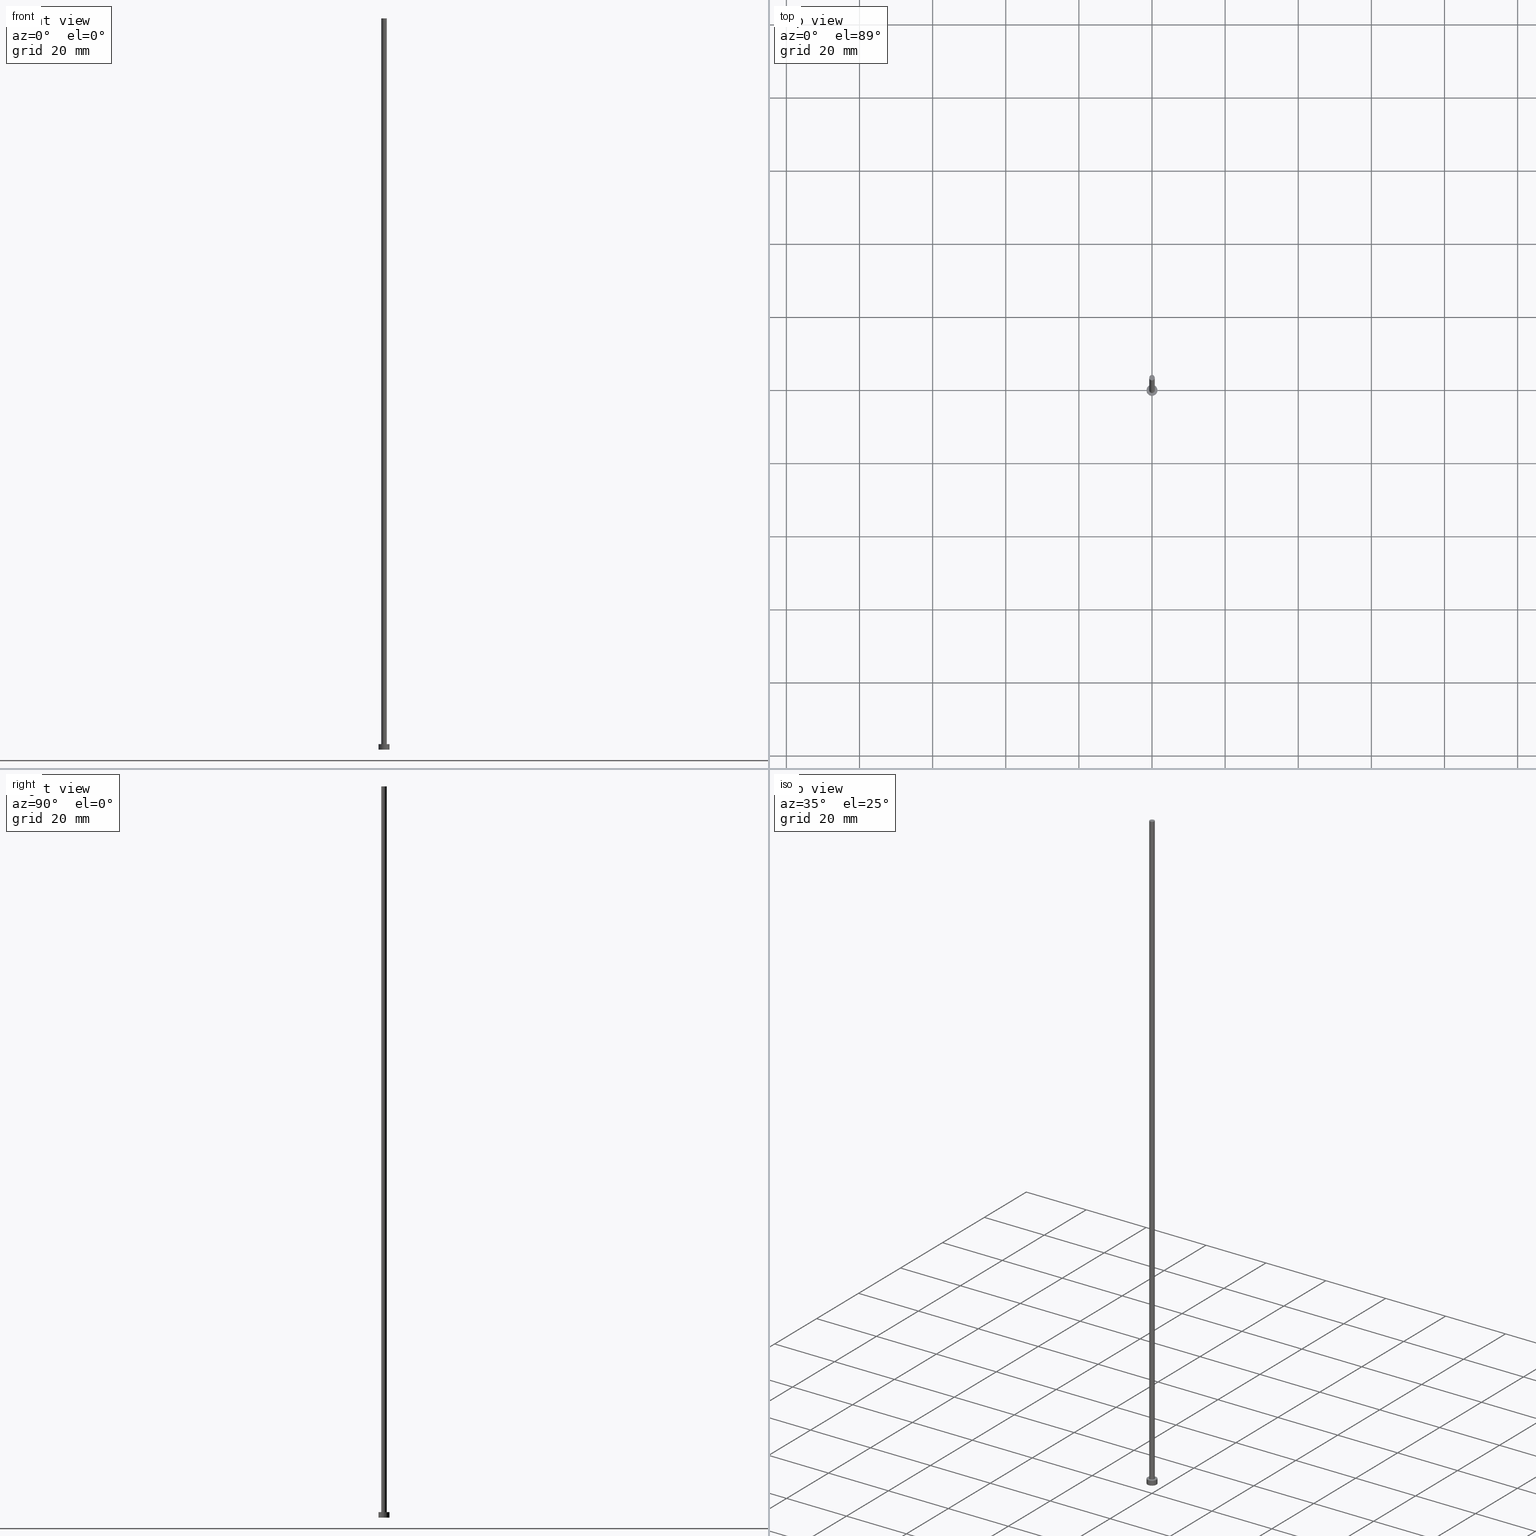
[diagram: canonical four-view strip — front | top / right | iso, engineering-drawing reading convention]
A machine part, canonical four-view strip (front | top / right | iso — engineering-drawing reading convention). The complete STEP part file that produces these views, byte-faithful:
ISO-10303-21;
HEADER;
FILE_DESCRIPTION (( 'STEP AP203' ),
    '1' );
FILE_NAME ('384c.STEP',
    '2026-02-06T12:33:17',
    ( '' ),
    ( '' ),
    'SwSTEP 2.0',
    'SolidWorks 2019',
    '' );
FILE_SCHEMA (( 'CONFIG_CONTROL_DESIGN' ));
ENDSEC;

DATA;
#1 = ORIENTED_EDGE ( 'NONE', *, *, #174, .T. ) ;
#2 = CALENDAR_DATE ( 2026, 6, 2 ) ;
#3 = APPLICATION_PROTOCOL_DEFINITION ( 'international standard', 'config_control_design', 1994, #215 ) ;
#4 = CC_DESIGN_APPROVAL ( #55, ( #110 ) ) ;
#5 = DATE_AND_TIME ( #76, #204 ) ;
#6 = ORIENTED_EDGE ( 'NONE', *, *, #95, .T. ) ;
#7 = DIRECTION ( 'NONE',  ( -0.000000000000000000, -0.000000000000000000, -1.000000000000000000 ) ) ;
#8 = CC_DESIGN_PERSON_AND_ORGANIZATION_ASSIGNMENT ( #78, #134, ( #112 ) ) ;
#9 = DATE_TIME_ROLE ( 'classification_date' ) ;
#10 = EDGE_LOOP ( 'NONE', ( #81, #24, #140, #104 ) ) ;
#11 = CARTESIAN_POINT ( 'NONE',  ( 0.000000000000000000, 0.000000000000000000, 1.500000000000000000 ) ) ;
#12 = COORDINATED_UNIVERSAL_TIME_OFFSET ( 1, 0, .AHEAD. ) ;
#13 = EDGE_LOOP ( 'NONE', ( #139, #131, #224, #37 ) ) ;
#14 = PRODUCT_RELATED_PRODUCT_CATEGORY ( 'detail', '', ( #50 ) ) ;
#15 = EDGE_CURVE ( 'NONE', #69, #168, #207, .T. ) ;
#16 =( LENGTH_UNIT ( ) NAMED_UNIT ( * ) SI_UNIT ( .MILLI., .METRE. ) );
#17 = DIRECTION ( 'NONE',  ( 0.000000000000000000, 0.000000000000000000, 1.000000000000000000 ) ) ;
#18 = DIRECTION ( 'NONE',  ( 1.000000000000000000, 0.000000000000000000, 0.000000000000000000 ) ) ;
#19 = DIRECTION ( 'NONE',  ( 1.000000000000000000, 0.000000000000000000, 0.000000000000000000 ) ) ;
#20 = DIRECTION ( 'NONE',  ( 0.000000000000000000, 0.000000000000000000, 1.000000000000000000 ) ) ;
#21 = CIRCLE ( 'NONE', #45, 0.7500000000000001110 ) ;
#22 = DIRECTION ( 'NONE',  ( 0.000000000000000000, 0.000000000000000000, 1.000000000000000000 ) ) ;
#23 = DIRECTION ( 'NONE',  ( 1.000000000000000000, 0.000000000000000000, 0.000000000000000000 ) ) ;
#24 = ORIENTED_EDGE ( 'NONE', *, *, #179, .F. ) ;
#25 = APPROVAL_DATE_TIME ( #98, #55 ) ;
#26 = PERSON_AND_ORGANIZATION_ROLE ( 'design_supplier' ) ;
#27 = CARTESIAN_POINT ( 'NONE',  ( 0.000000000000000000, 0.000000000000000000, 1.500000000000000000 ) ) ;
#28 = COORDINATED_UNIVERSAL_TIME_OFFSET ( 1, 0, .AHEAD. ) ;
#29 = DIRECTION ( 'NONE',  ( 1.000000000000000000, 0.000000000000000000, 0.000000000000000000 ) ) ;
#30 = PLANE ( 'NONE',  #221 ) ;
#31 = ORIENTED_EDGE ( 'NONE', *, *, #143, .F. ) ;
#32 = DIRECTION ( 'NONE',  ( -0.000000000000000000, -0.000000000000000000, -1.000000000000000000 ) ) ;
#33 = EDGE_CURVE ( 'NONE', #234, #242, #64, .T. ) ;
#34 = ORIENTED_EDGE ( 'NONE', *, *, #179, .T. ) ;
#35 = APPROVAL_PERSON_ORGANIZATION ( #161, #55, #198 ) ;
#36 = FACE_OUTER_BOUND ( 'NONE', #119, .T. ) ;
#37 = ORIENTED_EDGE ( 'NONE', *, *, #128, .F. ) ;
#38 = CIRCLE ( 'NONE', #113, 0.7500000000000001110 ) ;
#39 = COORDINATED_UNIVERSAL_TIME_OFFSET ( 1, 0, .AHEAD. ) ;
#40 = APPROVAL_ROLE ( '' ) ;
#41 = PRODUCT_DEFINITION_FORMATION_WITH_SPECIFIED_SOURCE ( 'LIBOVOLN�', '', #50, .NOT_KNOWN. ) ;
#42 = ADVANCED_BREP_SHAPE_REPRESENTATION ( '384c', ( #158, #172 ), #150 ) ;
#43 = APPROVAL_STATUS ( 'not_yet_approved' ) ;
#44 = CARTESIAN_POINT ( 'NONE',  ( 0.7500000000000001110, 9.184850993605150903E-17, 200.0000000000000000 ) ) ;
#45 = AXIS2_PLACEMENT_3D ( 'NONE', #229, #205, #18 ) ;
#46 = DIRECTION ( 'NONE',  ( 0.000000000000000000, 0.000000000000000000, 1.000000000000000000 ) ) ;
#47 = ADVANCED_FACE ( 'NONE', ( #232 ), #68, .T. ) ;
#48 = ADVANCED_FACE ( 'NONE', ( #66 ), #177, .T. ) ;
#49 = CARTESIAN_POINT ( 'NONE',  ( 0.000000000000000000, 0.000000000000000000, 1.500000000000000000 ) ) ;
#50 = PRODUCT ( '384c', '384c', '', ( #137 ) ) ;
#51 = CC_DESIGN_PERSON_AND_ORGANIZATION_ASSIGNMENT ( #59, #115, ( #50 ) ) ;
#52 = ADVANCED_FACE ( 'NONE', ( #253 ), #182, .T. ) ;
#53 = CALENDAR_DATE ( 2026, 6, 2 ) ;
#54 = APPROVAL_STATUS ( 'not_yet_approved' ) ;
#55 = APPROVAL ( #138, 'NEUR�EN�' ) ;
#56 = EDGE_LOOP ( 'NONE', ( #132, #220, #211, #231 ) ) ;
#57 = CARTESIAN_POINT ( 'NONE',  ( 1.500000000000000222, 1.836970198721030181E-16, 1.500000000000000000 ) ) ;
#58 = ORIENTED_EDGE ( 'NONE', *, *, #33, .T. ) ;
#59 = PERSON_AND_ORGANIZATION ( #164, #180 ) ;
#60 = LINE ( 'NONE', #44, #126 ) ;
#61 = CARTESIAN_POINT ( 'NONE',  ( 0.7500000000000001110, 9.184850993605150903E-17, 200.0000000000000000 ) ) ;
#62 = CC_DESIGN_SECURITY_CLASSIFICATION ( #110, ( #41 ) ) ;
#63 = EDGE_CURVE ( 'NONE', #122, #74, #67, .T. ) ;
#64 = CIRCLE ( 'NONE', #212, 1.500000000000000222 ) ;
#65 = AXIS2_PLACEMENT_3D ( 'NONE', #124, #147, #206 ) ;
#66 = FACE_OUTER_BOUND ( 'NONE', #56, .T. ) ;
#67 = CIRCLE ( 'NONE', #255, 0.7500000000000001110 ) ;
#68 = CYLINDRICAL_SURFACE ( 'NONE', #218, 0.7500000000000001110 ) ;
#69 = VERTEX_POINT ( 'NONE', #57 ) ;
#70 = AXIS2_PLACEMENT_3D ( 'NONE', #145, #32, #89 ) ;
#71 = DESIGN_CONTEXT ( 'detailed design', #215, 'design' ) ;
#72 = APPROVAL ( #54, 'NEUR�EN�' ) ;
#73 = CARTESIAN_POINT ( 'NONE',  ( 0.000000000000000000, 0.000000000000000000, 1.500000000000000000 ) ) ;
#74 = VERTEX_POINT ( 'NONE', #223 ) ;
#75 = CLOSED_SHELL ( 'NONE', ( #47, #52, #48, #123, #152, #216, #97 ) ) ;
#76 = CALENDAR_DATE ( 2026, 6, 2 ) ;
#77 = APPROVAL_PERSON_ORGANIZATION ( #135, #72, #162 ) ;
#78 = PERSON_AND_ORGANIZATION ( #164, #180 ) ;
#79 = CARTESIAN_POINT ( 'NONE',  ( 0.000000000000000000, 0.000000000000000000, 200.0000000000000000 ) ) ;
#80 = PERSON_AND_ORGANIZATION ( #164, #180 ) ;
#81 = ORIENTED_EDGE ( 'NONE', *, *, #176, .F. ) ;
#82 = DIRECTION ( 'NONE',  ( 0.000000000000000000, 0.000000000000000000, 1.000000000000000000 ) ) ;
#83 = ORIENTED_EDGE ( 'NONE', *, *, #33, .F. ) ;
#84 = PLANE ( 'NONE',  #236 ) ;
#85 = APPLICATION_PROTOCOL_DEFINITION ( 'international standard', 'config_control_design', 1994, #203 ) ;
#86 = DIRECTION ( 'NONE',  ( 0.000000000000000000, 0.000000000000000000, 1.000000000000000000 ) ) ;
#87 = EDGE_CURVE ( 'NONE', #168, #242, #117, .T. ) ;
#88 =( NAMED_UNIT ( * ) PLANE_ANGLE_UNIT ( ) SI_UNIT ( $, .RADIAN. ) );
#89 = DIRECTION ( 'NONE',  ( -1.000000000000000000, 0.000000000000000000, 0.000000000000000000 ) ) ;
#90 = DIRECTION ( 'NONE',  ( -0.000000000000000000, -0.000000000000000000, -1.000000000000000000 ) ) ;
#91 = LOCAL_TIME ( 13, 33, 17.00000000000000000, #39 ) ;
#92 = DIRECTION ( 'NONE',  ( -0.000000000000000000, -0.000000000000000000, -1.000000000000000000 ) ) ;
#93 = DIRECTION ( 'NONE',  ( 1.000000000000000000, 0.000000000000000000, 0.000000000000000000 ) ) ;
#94 = CARTESIAN_POINT ( 'NONE',  ( 0.000000000000000000, 0.000000000000000000, 1.500000000000000000 ) ) ;
#95 = EDGE_CURVE ( 'NONE', #187, #156, #144, .T. ) ;
#96 = CC_DESIGN_DATE_AND_TIME_ASSIGNMENT ( #238, #219, ( #112 ) ) ;
#97 = ADVANCED_FACE ( 'NONE', ( #239 ), #84, .T. ) ;
#98 = DATE_AND_TIME ( #159, #129 ) ;
#99 = CIRCLE ( 'NONE', #146, 1.500000000000000222 ) ;
#100 = DIRECTION ( 'NONE',  ( 0.000000000000000000, 0.000000000000000000, 1.000000000000000000 ) ) ;
#101 = CARTESIAN_POINT ( 'NONE',  ( -1.500000000000000222, 0.000000000000000000, 1.500000000000000000 ) ) ;
#102 = COORDINATED_UNIVERSAL_TIME_OFFSET ( 1, 0, .AHEAD. ) ;
#103 = SHAPE_DEFINITION_REPRESENTATION ( #157, #42 ) ;
#104 = ORIENTED_EDGE ( 'NONE', *, *, #143, .T. ) ;
#105 = CARTESIAN_POINT ( 'NONE',  ( -0.7500000000000001110, 0.000000000000000000, 200.0000000000000000 ) ) ;
#106 = ORIENTED_EDGE ( 'NONE', *, *, #15, .T. ) ;
#107 = AXIS2_PLACEMENT_3D ( 'NONE', #27, #185, #241 ) ;
#108 = FACE_OUTER_BOUND ( 'NONE', #10, .T. ) ;
#109 = CARTESIAN_POINT ( 'NONE',  ( 0.7500000000000001110, 9.184850993605150903E-17, 1.500000000000000000 ) ) ;
#110 = SECURITY_CLASSIFICATION ( '', '', #141 ) ;
#111 = LOCAL_TIME ( 13, 33, 17.00000000000000000, #102 ) ;
#112 = PRODUCT_DEFINITION ( 'NEZN�M�', '', #41, #71 ) ;
#113 = AXIS2_PLACEMENT_3D ( 'NONE', #250, #149, #19 ) ;
#114 = EDGE_LOOP ( 'NONE', ( #34, #6 ) ) ;
#115 = PERSON_AND_ORGANIZATION_ROLE ( 'design_owner' ) ;
#116 = DATE_AND_TIME ( #2, #91 ) ;
#117 = LINE ( 'NONE', #101, #136 ) ;
#118 = PERSON_AND_ORGANIZATION ( #164, #180 ) ;
#119 = EDGE_LOOP ( 'NONE', ( #184, #83 ) ) ;
#120 = APPROVAL ( #43, 'NEUR�EN�' ) ;
#121 =( NAMED_UNIT ( * ) SI_UNIT ( $, .STERADIAN. ) SOLID_ANGLE_UNIT ( ) );
#122 = VERTEX_POINT ( 'NONE', #109 ) ;
#123 = ADVANCED_FACE ( 'NONE', ( #175, #252 ), #30, .T. ) ;
#124 = CARTESIAN_POINT ( 'NONE',  ( 0.000000000000000000, 0.000000000000000000, 0.000000000000000000 ) ) ;
#125 = DIRECTION ( 'NONE',  ( 1.000000000000000000, 0.000000000000000000, 0.000000000000000000 ) ) ;
#126 = VECTOR ( 'NONE', #226, 1000.000000000000000 ) ;
#127 = CARTESIAN_POINT ( 'NONE',  ( 0.000000000000000000, 0.000000000000000000, 0.000000000000000000 ) ) ;
#128 = EDGE_CURVE ( 'NONE', #156, #74, #194, .T. ) ;
#129 = LOCAL_TIME ( 13, 33, 17.00000000000000000, #181 ) ;
#130 = PLANE ( 'NONE',  #133 ) ;
#131 = ORIENTED_EDGE ( 'NONE', *, *, #176, .T. ) ;
#132 = ORIENTED_EDGE ( 'NONE', *, *, #174, .F. ) ;
#133 = AXIS2_PLACEMENT_3D ( 'NONE', #208, #86, #188 ) ;
#134 = PERSON_AND_ORGANIZATION_ROLE ( 'creator' ) ;
#135 = PERSON_AND_ORGANIZATION ( #164, #180 ) ;
#136 = VECTOR ( 'NONE', #7, 1000.000000000000000 ) ;
#137 = MECHANICAL_CONTEXT ( 'NONE', #203, 'mechanical' ) ;
#138 = APPROVAL_STATUS ( 'not_yet_approved' ) ;
#139 = ORIENTED_EDGE ( 'NONE', *, *, #95, .F. ) ;
#140 = ORIENTED_EDGE ( 'NONE', *, *, #128, .T. ) ;
#141 = SECURITY_CLASSIFICATION_LEVEL ( 'unclassified' ) ;
#142 = CARTESIAN_POINT ( 'NONE',  ( 0.000000000000000000, 0.000000000000000000, 200.0000000000000000 ) ) ;
#143 = EDGE_CURVE ( 'NONE', #74, #122, #38, .T. ) ;
#144 = CIRCLE ( 'NONE', #225, 0.7500000000000001110 ) ;
#145 = CARTESIAN_POINT ( 'NONE',  ( 0.000000000000000000, 0.000000000000000000, 200.0000000000000000 ) ) ;
#146 = AXIS2_PLACEMENT_3D ( 'NONE', #148, #189, #170 ) ;
#147 = DIRECTION ( 'NONE',  ( 0.000000000000000000, 0.000000000000000000, 1.000000000000000000 ) ) ;
#148 = CARTESIAN_POINT ( 'NONE',  ( 0.000000000000000000, 0.000000000000000000, 1.500000000000000000 ) ) ;
#149 = DIRECTION ( 'NONE',  ( 0.000000000000000000, 0.000000000000000000, 1.000000000000000000 ) ) ;
#150 =( GEOMETRIC_REPRESENTATION_CONTEXT ( 3 ) GLOBAL_UNCERTAINTY_ASSIGNED_CONTEXT ( ( #154 ) ) GLOBAL_UNIT_ASSIGNED_CONTEXT ( ( #16, #88, #121 ) ) REPRESENTATION_CONTEXT ( 'NONE', 'WORKASPACE' ) );
#151 = CARTESIAN_POINT ( 'NONE',  ( 0.000000000000000000, 0.000000000000000000, 200.0000000000000000 ) ) ;
#152 = ADVANCED_FACE ( 'NONE', ( #36 ), #130, .F. ) ;
#153 = DIRECTION ( 'NONE',  ( -1.000000000000000000, 0.000000000000000000, 0.000000000000000000 ) ) ;
#154 = UNCERTAINTY_MEASURE_WITH_UNIT (LENGTH_MEASURE( 1.000000000000000082E-05 ), #16, 'distance_accuracy_value', 'NONE');
#155 = CC_DESIGN_APPROVAL ( #72, ( #112 ) ) ;
#156 = VERTEX_POINT ( 'NONE', #105 ) ;
#157 = PRODUCT_DEFINITION_SHAPE ( 'NONE', 'NONE',  #112 ) ;
#158 = MANIFOLD_SOLID_BREP ( 'P�idat vysunut�m3', #75 ) ;
#159 = CALENDAR_DATE ( 2026, 6, 2 ) ;
#160 = CIRCLE ( 'NONE', #65, 1.500000000000000222 ) ;
#161 = PERSON_AND_ORGANIZATION ( #164, #180 ) ;
#162 = APPROVAL_ROLE ( '' ) ;
#163 = EDGE_LOOP ( 'NONE', ( #196, #106 ) ) ;
#164 = PERSON ( 'NEUR�EN�', 'NEUR�EN�', 'NEUR�EN�', ('NEUR�EN�'), ('NEUR�EN�'), ('NEUR�EN�') ) ;
#165 = ORIENTED_EDGE ( 'NONE', *, *, #87, .F. ) ;
#166 = CC_DESIGN_PERSON_AND_ORGANIZATION_ASSIGNMENT ( #201, #169, ( #41 ) ) ;
#167 = DIRECTION ( 'NONE',  ( 1.000000000000000000, 0.000000000000000000, 0.000000000000000000 ) ) ;
#168 = VERTEX_POINT ( 'NONE', #246 ) ;
#169 = PERSON_AND_ORGANIZATION_ROLE ( 'creator' ) ;
#170 = DIRECTION ( 'NONE',  ( 1.000000000000000000, 0.000000000000000000, 0.000000000000000000 ) ) ;
#171 = CYLINDRICAL_SURFACE ( 'NONE', #70, 0.7500000000000001110 ) ;
#172 = AXIS2_PLACEMENT_3D ( 'NONE', #230, #46, #125 ) ;
#173 = CARTESIAN_POINT ( 'NONE',  ( 1.500000000000000222, 1.836970198721030181E-16, 0.000000000000000000 ) ) ;
#174 = EDGE_CURVE ( 'NONE', #69, #234, #190, .T. ) ;
#175 = FACE_BOUND ( 'NONE', #213, .T. ) ;
#176 = EDGE_CURVE ( 'NONE', #187, #122, #60, .T. ) ;
#177 = CYLINDRICAL_SURFACE ( 'NONE', #209, 1.500000000000000222 ) ;
#178 = DIRECTION ( 'NONE',  ( 0.000000000000000000, 0.000000000000000000, 1.000000000000000000 ) ) ;
#179 = EDGE_CURVE ( 'NONE', #156, #187, #21, .T. ) ;
#180 = ORGANIZATION ( 'NEUR�EN�', 'NEUR�EN�', '' ) ;
#181 = COORDINATED_UNIVERSAL_TIME_OFFSET ( 1, 0, .AHEAD. ) ;
#182 = CYLINDRICAL_SURFACE ( 'NONE', #107, 1.500000000000000222 ) ;
#183 = DATE_AND_TIME ( #53, #111 ) ;
#184 = ORIENTED_EDGE ( 'NONE', *, *, #228, .F. ) ;
#185 = DIRECTION ( 'NONE',  ( -0.000000000000000000, -0.000000000000000000, -1.000000000000000000 ) ) ;
#186 = VECTOR ( 'NONE', #245, 1000.000000000000000 ) ;
#187 = VERTEX_POINT ( 'NONE', #61 ) ;
#188 = DIRECTION ( 'NONE',  ( 1.000000000000000000, 0.000000000000000000, -0.000000000000000000 ) ) ;
#189 = DIRECTION ( 'NONE',  ( 0.000000000000000000, 0.000000000000000000, 1.000000000000000000 ) ) ;
#190 = LINE ( 'NONE', #249, #186 ) ;
#191 = CC_DESIGN_PERSON_AND_ORGANIZATION_ASSIGNMENT ( #118, #26, ( #41 ) ) ;
#192 = CARTESIAN_POINT ( 'NONE',  ( -0.7500000000000001110, 0.000000000000000000, 200.0000000000000000 ) ) ;
#193 = EDGE_CURVE ( 'NONE', #168, #69, #99, .T. ) ;
#194 = LINE ( 'NONE', #192, #214 ) ;
#195 = ORIENTED_EDGE ( 'NONE', *, *, #15, .F. ) ;
#196 = ORIENTED_EDGE ( 'NONE', *, *, #193, .T. ) ;
#197 = PERSON_AND_ORGANIZATION ( #164, #180 ) ;
#198 = APPROVAL_ROLE ( '' ) ;
#199 = CC_DESIGN_DATE_AND_TIME_ASSIGNMENT ( #183, #9, ( #110 ) ) ;
#200 = APPROVAL_DATE_TIME ( #116, #120 ) ;
#201 = PERSON_AND_ORGANIZATION ( #164, #180 ) ;
#202 = AXIS2_PLACEMENT_3D ( 'NONE', #49, #22, #93 ) ;
#203 = APPLICATION_CONTEXT ( 'configuration controlled 3d designs of mechanical parts and assemblies' ) ;
#204 = LOCAL_TIME ( 13, 33, 17.00000000000000000, #12 ) ;
#205 = DIRECTION ( 'NONE',  ( 0.000000000000000000, 0.000000000000000000, 1.000000000000000000 ) ) ;
#206 = DIRECTION ( 'NONE',  ( 1.000000000000000000, 0.000000000000000000, 0.000000000000000000 ) ) ;
#207 = CIRCLE ( 'NONE', #202, 1.500000000000000222 ) ;
#208 = CARTESIAN_POINT ( 'NONE',  ( 0.000000000000000000, 0.000000000000000000, 0.000000000000000000 ) ) ;
#209 = AXIS2_PLACEMENT_3D ( 'NONE', #94, #90, #210 ) ;
#210 = DIRECTION ( 'NONE',  ( -1.000000000000000000, 0.000000000000000000, 0.000000000000000000 ) ) ;
#211 = ORIENTED_EDGE ( 'NONE', *, *, #87, .T. ) ;
#212 = AXIS2_PLACEMENT_3D ( 'NONE', #127, #178, #23 ) ;
#213 = EDGE_LOOP ( 'NONE', ( #31, #222 ) ) ;
#214 = VECTOR ( 'NONE', #92, 1000.000000000000000 ) ;
#215 = APPLICATION_CONTEXT ( 'configuration controlled 3d designs of mechanical parts and assemblies' ) ;
#216 = ADVANCED_FACE ( 'NONE', ( #108 ), #171, .T. ) ;
#217 = CALENDAR_DATE ( 2026, 6, 2 ) ;
#218 = AXIS2_PLACEMENT_3D ( 'NONE', #151, #254, #153 ) ;
#219 = DATE_TIME_ROLE ( 'creation_date' ) ;
#220 = ORIENTED_EDGE ( 'NONE', *, *, #193, .F. ) ;
#221 = AXIS2_PLACEMENT_3D ( 'NONE', #73, #20, #233 ) ;
#222 = ORIENTED_EDGE ( 'NONE', *, *, #63, .F. ) ;
#223 = CARTESIAN_POINT ( 'NONE',  ( -0.7500000000000001110, 0.000000000000000000, 1.500000000000000000 ) ) ;
#224 = ORIENTED_EDGE ( 'NONE', *, *, #63, .T. ) ;
#225 = AXIS2_PLACEMENT_3D ( 'NONE', #79, #100, #29 ) ;
#226 = DIRECTION ( 'NONE',  ( -0.000000000000000000, -0.000000000000000000, -1.000000000000000000 ) ) ;
#227 = LOCAL_TIME ( 13, 33, 17.00000000000000000, #28 ) ;
#228 = EDGE_CURVE ( 'NONE', #242, #234, #160, .T. ) ;
#229 = CARTESIAN_POINT ( 'NONE',  ( 0.000000000000000000, 0.000000000000000000, 200.0000000000000000 ) ) ;
#230 = CARTESIAN_POINT ( 'NONE',  ( 0.000000000000000000, 0.000000000000000000, 0.000000000000000000 ) ) ;
#231 = ORIENTED_EDGE ( 'NONE', *, *, #228, .T. ) ;
#232 = FACE_OUTER_BOUND ( 'NONE', #13, .T. ) ;
#233 = DIRECTION ( 'NONE',  ( 1.000000000000000000, 0.000000000000000000, -0.000000000000000000 ) ) ;
#234 = VERTEX_POINT ( 'NONE', #173 ) ;
#235 = CC_DESIGN_APPROVAL ( #120, ( #41 ) ) ;
#236 = AXIS2_PLACEMENT_3D ( 'NONE', #142, #17, #247 ) ;
#237 = APPROVAL_DATE_TIME ( #5, #72 ) ;
#238 = DATE_AND_TIME ( #217, #227 ) ;
#239 = FACE_OUTER_BOUND ( 'NONE', #114, .T. ) ;
#240 = EDGE_LOOP ( 'NONE', ( #195, #1, #58, #165 ) ) ;
#241 = DIRECTION ( 'NONE',  ( -1.000000000000000000, 0.000000000000000000, 0.000000000000000000 ) ) ;
#242 = VERTEX_POINT ( 'NONE', #251 ) ;
#243 = PERSON_AND_ORGANIZATION_ROLE ( 'classification_officer' ) ;
#244 = CC_DESIGN_PERSON_AND_ORGANIZATION_ASSIGNMENT ( #80, #243, ( #110 ) ) ;
#245 = DIRECTION ( 'NONE',  ( -0.000000000000000000, -0.000000000000000000, -1.000000000000000000 ) ) ;
#246 = CARTESIAN_POINT ( 'NONE',  ( -1.500000000000000222, 0.000000000000000000, 1.500000000000000000 ) ) ;
#247 = DIRECTION ( 'NONE',  ( 1.000000000000000000, 0.000000000000000000, -0.000000000000000000 ) ) ;
#248 = APPROVAL_PERSON_ORGANIZATION ( #197, #120, #40 ) ;
#249 = CARTESIAN_POINT ( 'NONE',  ( 1.500000000000000222, 1.836970198721030181E-16, 1.500000000000000000 ) ) ;
#250 = CARTESIAN_POINT ( 'NONE',  ( 0.000000000000000000, 0.000000000000000000, 1.500000000000000000 ) ) ;
#251 = CARTESIAN_POINT ( 'NONE',  ( -1.500000000000000222, 0.000000000000000000, 0.000000000000000000 ) ) ;
#252 = FACE_OUTER_BOUND ( 'NONE', #163, .T. ) ;
#253 = FACE_OUTER_BOUND ( 'NONE', #240, .T. ) ;
#254 = DIRECTION ( 'NONE',  ( -0.000000000000000000, -0.000000000000000000, -1.000000000000000000 ) ) ;
#255 = AXIS2_PLACEMENT_3D ( 'NONE', #11, #82, #167 ) ;
ENDSEC;
END-ISO-10303-21;
